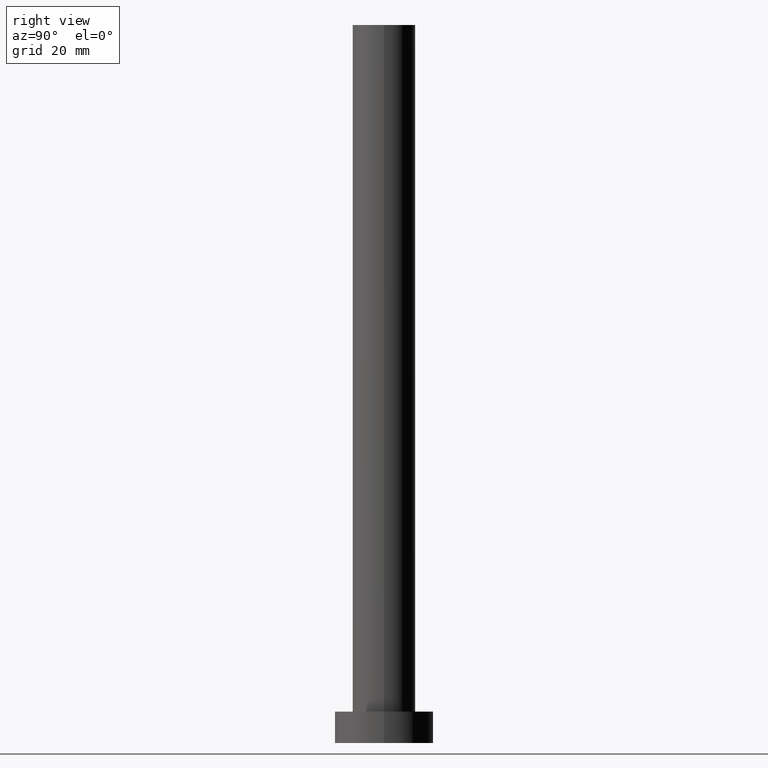
[diagram: clean part render]
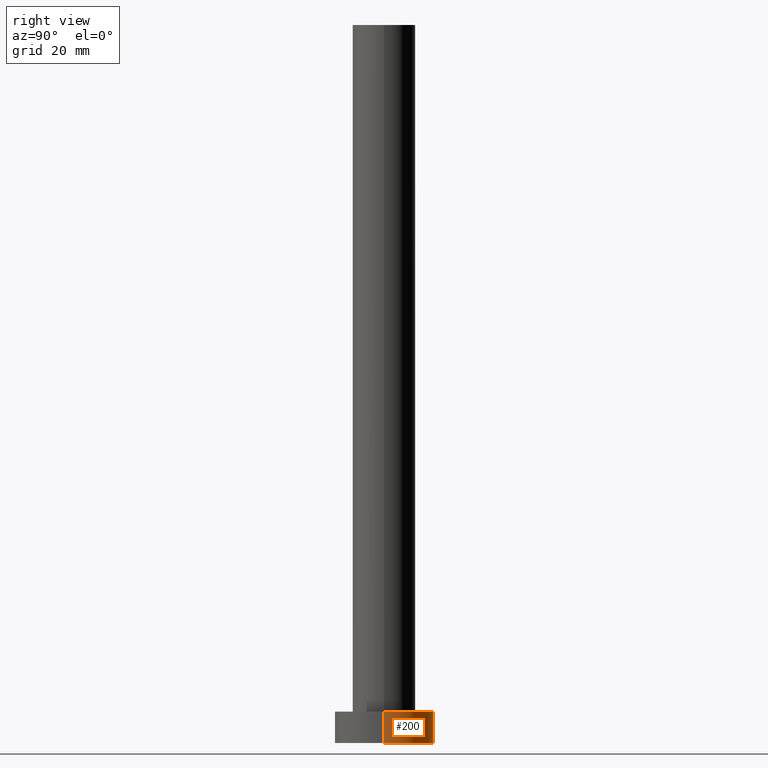
[diagram: same view with one face highlighted and labeled with its STEP entity id]
A machine part, right view. The second image highlights one B-rep face of the part: STEP entity #200.
In plain terms, the highlighted cylindrical surface (partial cylindrical patch) has radius 11 mm, axis along (-0, -0, -1).
Its self-contained STEP definition (entity closure, byte-faithful):
#3 = CIRCLE ( 'NONE', #144, 11.00000000000000000 ) ;
#6 = AXIS2_PLACEMENT_3D ( 'NONE', #188, #166, #62 ) ;
#12 = CARTESIAN_POINT ( 'NONE',  ( -11.00000000000000000, 0.000000000000000000, 7.000000000000000000 ) ) ;
#25 = VERTEX_POINT ( 'NONE', #232 ) ;
#29 = VERTEX_POINT ( 'NONE', #12 ) ;
#35 = EDGE_CURVE ( 'NONE', #95, #29, #253, .T. ) ;
#50 = ORIENTED_EDGE ( 'NONE', *, *, #35, .F. ) ;
#52 = VERTEX_POINT ( 'NONE', #140 ) ;
#62 = DIRECTION ( 'NONE',  ( -1.000000000000000000, 0.000000000000000000, 0.000000000000000000 ) ) ;
#66 = CYLINDRICAL_SURFACE ( 'NONE', #6, 11.00000000000000000 ) ;
#77 = LINE ( 'NONE', #79, #97 ) ;
#79 = CARTESIAN_POINT ( 'NONE',  ( 11.00000000000000000, 1.347111479062088405E-15, 7.000000000000000000 ) ) ;
#93 = DIRECTION ( 'NONE',  ( 0.000000000000000000, 0.000000000000000000, 1.000000000000000000 ) ) ;
#95 = VERTEX_POINT ( 'NONE', #130 ) ;
#97 = VECTOR ( 'NONE', #102, 1000.000000000000000 ) ;
#98 = EDGE_CURVE ( 'NONE', #25, #52, #3, .T. ) ;
#100 = AXIS2_PLACEMENT_3D ( 'NONE', #165, #93, #240 ) ;
#102 = DIRECTION ( 'NONE',  ( -0.000000000000000000, -0.000000000000000000, -1.000000000000000000 ) ) ;
#109 = VECTOR ( 'NONE', #255, 1000.000000000000000 ) ;
#111 = EDGE_LOOP ( 'NONE', ( #50, #128, #231, #167 ) ) ;
#116 = EDGE_CURVE ( 'NONE', #95, #25, #77, .T. ) ;
#128 = ORIENTED_EDGE ( 'NONE', *, *, #116, .T. ) ;
#130 = CARTESIAN_POINT ( 'NONE',  ( 11.00000000000000000, 1.347111479062088405E-15, 7.000000000000000000 ) ) ;
#134 = LINE ( 'NONE', #221, #109 ) ;
#140 = CARTESIAN_POINT ( 'NONE',  ( -11.00000000000000000, 0.000000000000000000, 0.000000000000000000 ) ) ;
#144 = AXIS2_PLACEMENT_3D ( 'NONE', #195, #174, #250 ) ;
#152 = EDGE_CURVE ( 'NONE', #29, #52, #134, .T. ) ;
#165 = CARTESIAN_POINT ( 'NONE',  ( 0.000000000000000000, 0.000000000000000000, 7.000000000000000000 ) ) ;
#166 = DIRECTION ( 'NONE',  ( -0.000000000000000000, -0.000000000000000000, -1.000000000000000000 ) ) ;
#167 = ORIENTED_EDGE ( 'NONE', *, *, #152, .F. ) ;
#174 = DIRECTION ( 'NONE',  ( 0.000000000000000000, 0.000000000000000000, 1.000000000000000000 ) ) ;
#188 = CARTESIAN_POINT ( 'NONE',  ( 0.000000000000000000, 0.000000000000000000, 7.000000000000000000 ) ) ;
#195 = CARTESIAN_POINT ( 'NONE',  ( 0.000000000000000000, 0.000000000000000000, 0.000000000000000000 ) ) ;
#200 = ADVANCED_FACE ( 'NONE', ( #206 ), #66, .T. ) ;
#206 = FACE_OUTER_BOUND ( 'NONE', #111, .T. ) ;
#221 = CARTESIAN_POINT ( 'NONE',  ( -11.00000000000000000, 0.000000000000000000, 7.000000000000000000 ) ) ;
#231 = ORIENTED_EDGE ( 'NONE', *, *, #98, .T. ) ;
#232 = CARTESIAN_POINT ( 'NONE',  ( 11.00000000000000000, 1.347111479062088405E-15, 0.000000000000000000 ) ) ;
#240 = DIRECTION ( 'NONE',  ( 1.000000000000000000, 0.000000000000000000, 0.000000000000000000 ) ) ;
#250 = DIRECTION ( 'NONE',  ( 1.000000000000000000, 0.000000000000000000, 0.000000000000000000 ) ) ;
#253 = CIRCLE ( 'NONE', #100, 11.00000000000000000 ) ;
#255 = DIRECTION ( 'NONE',  ( -0.000000000000000000, -0.000000000000000000, -1.000000000000000000 ) ) ;